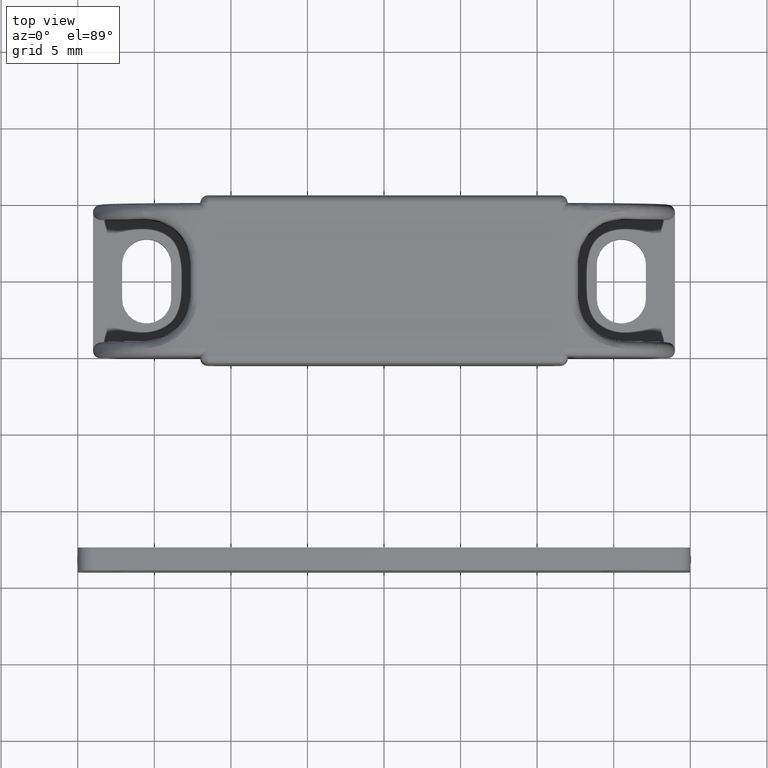
[diagram: clean part render]
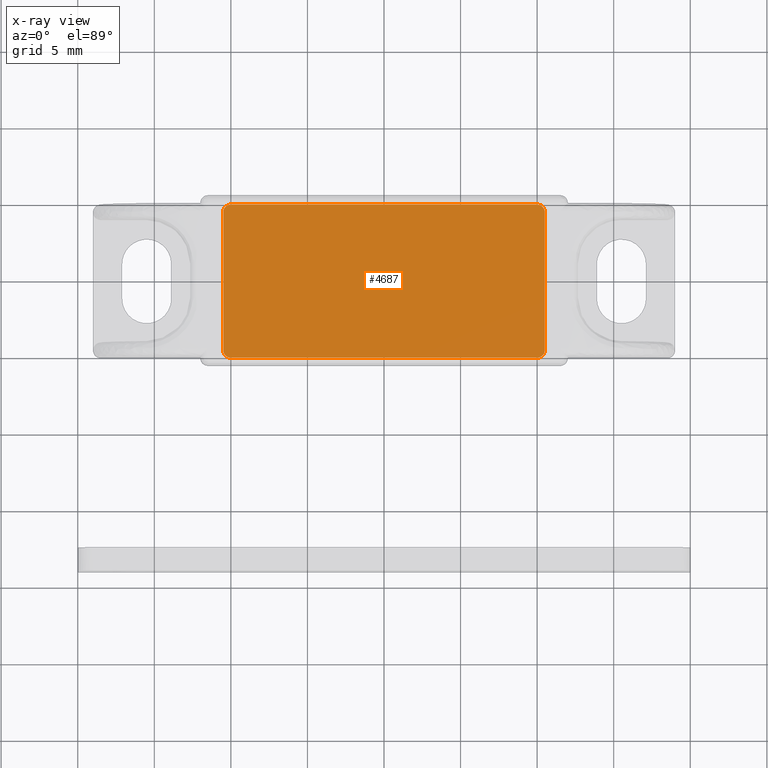
[diagram: x-ray — body ghosted, one internal face saturated and labeled with its STEP entity id]
A machine part, top view, then the same camera in x-ray: the body is ghosted and one INTERNAL B-rep face — a face not visible from any outside direction — is saturated and labeled: STEP entity #4687.
In plain terms, the highlighted face is a freeform B-spline surface patch.
Its self-contained STEP definition (entity closure, byte-faithful):
#4590=CARTESIAN_POINT('',(-11.548949959299270,-5.499499980618060,2.300000000000000));
#4591=CARTESIAN_POINT('',(11.548950522562830,-5.499499980618060,2.300000000000000));
#4592=CARTESIAN_POINT('',(-11.548949959299270,5.499500248838961,2.300000000000000));
#4593=CARTESIAN_POINT('',(11.548950522562830,5.499500248838961,2.300000000000000));
#4594=B_SPLINE_SURFACE_WITH_KNOTS('',1,1,((#4590,#4592),(#4591,#4593)),.UNSPECIFIED.,.F.,.F.,.U.,(2,2),(2,2),(0.0,23.097900481862101),(0.0,10.999000229457019),.UNSPECIFIED.);
#4595=CARTESIAN_POINT('',(-9.999999999999089,-5.0,2.299999999999970));
#4596=VERTEX_POINT('',#4595);
#4597=CARTESIAN_POINT('',(-10.499999999999099,-4.500000000000220,2.299999999999970));
#4598=VERTEX_POINT('',#4597);
#4599=CARTESIAN_POINT('',(-9.999999999999089,-4.999999999999999,2.299999999999970));
#4600=CARTESIAN_POINT('',(-10.499999999998870,-4.999999999999999,2.299999999999971));
#4601=CARTESIAN_POINT('',(-10.499999999999091,-4.500000000000220,2.299999999999970));
#4609=(BOUNDED_CURVE()B_SPLINE_CURVE(2,(#4599,#4600,#4601),.UNSPECIFIED.,.F.,.U.)CURVE()GEOMETRIC_REPRESENTATION_ITEM()QUASI_UNIFORM_CURVE()RATIONAL_B_SPLINE_CURVE((1.0,0.707106781186703,1.0))REPRESENTATION_ITEM(''));
#4610=EDGE_CURVE('',#4596,#4598,#4609,.T.);
#4611=ORIENTED_EDGE('',*,*,#4610,.F.);
#4612=CARTESIAN_POINT('',(10.000000000000901,-5.0,2.299999999999970));
#4613=VERTEX_POINT('',#4612);
#4614=CARTESIAN_POINT('',(10.000000000000901,-5.0,2.299999999999970));
#4615=CARTESIAN_POINT('',(-9.999999999999089,-5.0,2.299999999999970));
#4616=QUASI_UNIFORM_CURVE('',1,(#4614,#4615),.UNSPECIFIED.,.F.,.U.);
#4617=EDGE_CURVE('',#4613,#4596,#4616,.T.);
#4618=ORIENTED_EDGE('',*,*,#4617,.F.);
#4619=CARTESIAN_POINT('',(10.500000000000901,-4.499999999999894,2.299999999999970));
#4620=VERTEX_POINT('',#4619);
#4621=CARTESIAN_POINT('',(10.500000000000901,-4.499999999999894,2.299999999999970));
#4622=CARTESIAN_POINT('',(10.500000000000901,-4.999999999999998,2.299999999999970));
#4623=CARTESIAN_POINT('',(10.000000000000901,-4.999999999999999,2.299999999999970));
#4631=(BOUNDED_CURVE()B_SPLINE_CURVE(2,(#4621,#4622,#4623),.UNSPECIFIED.,.F.,.U.)CURVE()GEOMETRIC_REPRESENTATION_ITEM()QUASI_UNIFORM_CURVE()RATIONAL_B_SPLINE_CURVE((1.0,0.707106781186548,1.0))REPRESENTATION_ITEM(''));
#4632=EDGE_CURVE('',#4620,#4613,#4631,.T.);
#4633=ORIENTED_EDGE('',*,*,#4632,.F.);
#4634=CARTESIAN_POINT('',(10.499999999998639,4.500000000000000,2.299999999999970));
#4635=VERTEX_POINT('',#4634);
#4636=CARTESIAN_POINT('',(10.499999999998639,4.500000000000000,2.299999999999970));
#4637=CARTESIAN_POINT('',(10.500000000000901,-4.499999999999894,2.299999999999970));
#4638=QUASI_UNIFORM_CURVE('',1,(#4636,#4637),.UNSPECIFIED.,.F.,.U.);
#4639=EDGE_CURVE('',#4635,#4620,#4638,.T.);
#4640=ORIENTED_EDGE('',*,*,#4639,.F.);
#4641=CARTESIAN_POINT('',(9.999999999998749,5.0,2.299999999999970));
#4642=VERTEX_POINT('',#4641);
#4643=CARTESIAN_POINT('',(9.999999999998749,4.999999999999999,2.299999999999970));
#4644=CARTESIAN_POINT('',(10.499999999998632,4.999999999999878,2.299999999999971));
#4645=CARTESIAN_POINT('',(10.499999999998630,4.500000000000000,2.299999999999970));
#4653=(BOUNDED_CURVE()B_SPLINE_CURVE(2,(#4643,#4644,#4645),.UNSPECIFIED.,.F.,.U.)CURVE()GEOMETRIC_REPRESENTATION_ITEM()QUASI_UNIFORM_CURVE()RATIONAL_B_SPLINE_CURVE((1.0,0.707106781186632,1.0))REPRESENTATION_ITEM(''));
#4654=EDGE_CURVE('',#4642,#4635,#4653,.T.);
#4655=ORIENTED_EDGE('',*,*,#4654,.F.);
#4656=CARTESIAN_POINT('',(-10.000000000001361,5.0,2.299999999999970));
#4657=VERTEX_POINT('',#4656);
#4658=CARTESIAN_POINT('',(-10.000000000001361,5.0,2.299999999999970));
#4659=CARTESIAN_POINT('',(9.999999999998749,5.0,2.299999999999970));
#4660=QUASI_UNIFORM_CURVE('',1,(#4658,#4659),.UNSPECIFIED.,.F.,.U.);
#4661=EDGE_CURVE('',#4657,#4642,#4660,.T.);
#4662=ORIENTED_EDGE('',*,*,#4661,.F.);
#4663=CARTESIAN_POINT('',(-10.500000000001240,4.499999999999830,2.299999999999970));
#4664=VERTEX_POINT('',#4663);
#4665=CARTESIAN_POINT('',(-10.500000000001240,4.499999999999830,2.299999999999970));
#4666=CARTESIAN_POINT('',(-10.500000000001430,4.707106781186427,2.299999999999971));
#4667=CARTESIAN_POINT('',(-10.353553390594691,4.853553390593214,2.299999999999970));
#4668=CARTESIAN_POINT('',(-10.207106781187957,5.0,2.299999999999971));
#4669=CARTESIAN_POINT('',(-10.000000000001361,4.999999999999999,2.299999999999970));
#4677=(BOUNDED_CURVE()B_SPLINE_CURVE(2,(#4665,#4666,#4667,#4668,#4669),.UNSPECIFIED.,.F.,.U.)B_SPLINE_CURVE_WITH_KNOTS((3,2,3),(0.0,0.500000000000000,1.0),.UNSPECIFIED.)CURVE()GEOMETRIC_REPRESENTATION_ITEM()RATIONAL_B_SPLINE_CURVE((1.0,0.923879532511254,1.0,0.923879532511254,1.0))REPRESENTATION_ITEM(''));
#4678=EDGE_CURVE('',#4664,#4657,#4677,.T.);
#4679=ORIENTED_EDGE('',*,*,#4678,.F.);
#4680=CARTESIAN_POINT('',(-10.499999999999099,-4.500000000000220,2.299999999999970));
#4681=CARTESIAN_POINT('',(-10.500000000001240,4.499999999999830,2.299999999999970));
#4682=QUASI_UNIFORM_CURVE('',1,(#4680,#4681),.UNSPECIFIED.,.F.,.U.);
#4683=EDGE_CURVE('',#4598,#4664,#4682,.T.);
#4684=ORIENTED_EDGE('',*,*,#4683,.F.);
#4685=EDGE_LOOP('',(#4611,#4618,#4633,#4640,#4655,#4662,#4679,#4684));
#4686=FACE_OUTER_BOUND('',#4685,.T.);
#4687=ADVANCED_FACE('',(#4686),#4594,.T.);